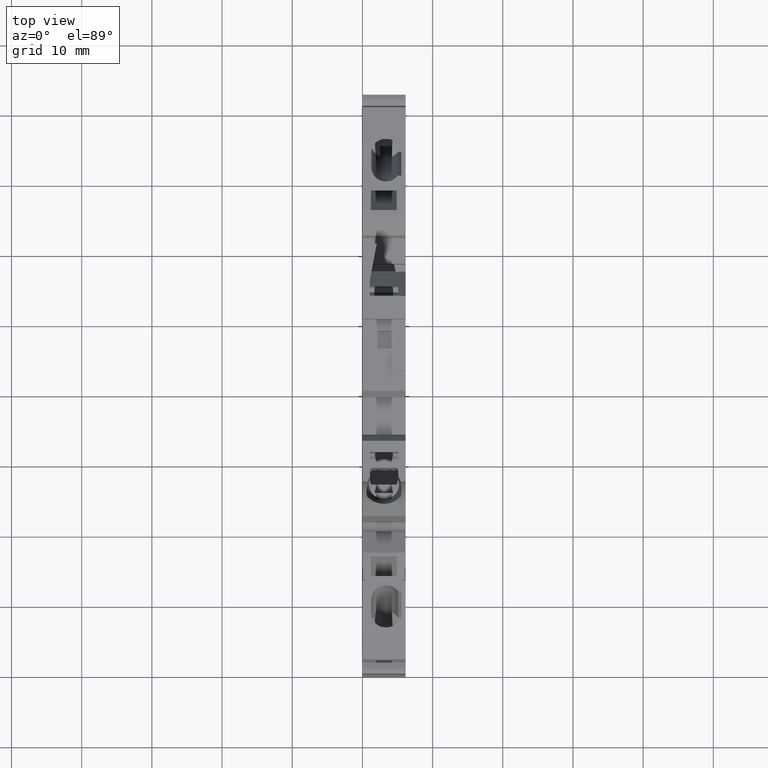
[diagram: clean part render]
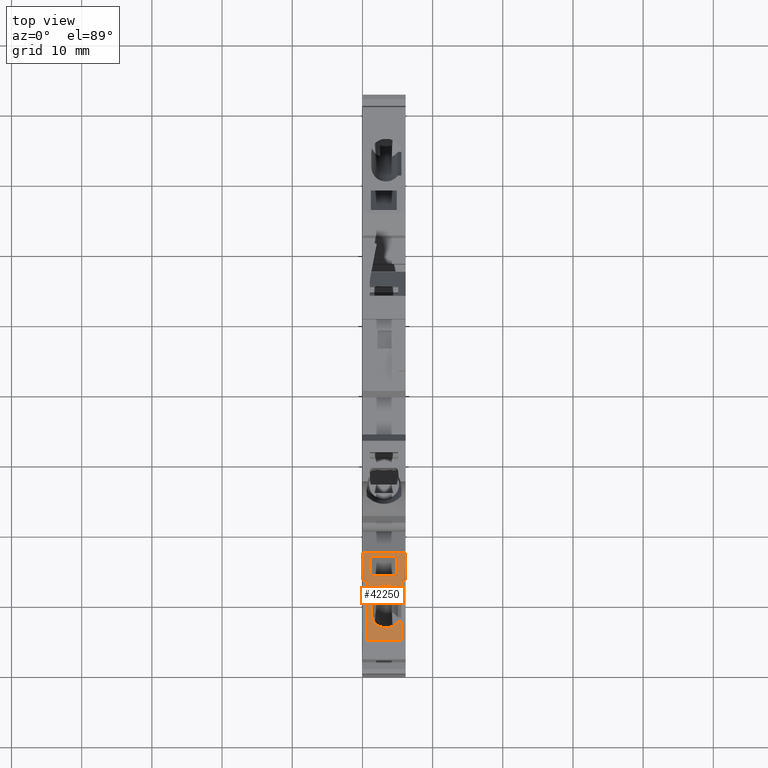
[diagram: same view with one face highlighted and labeled with its STEP entity id]
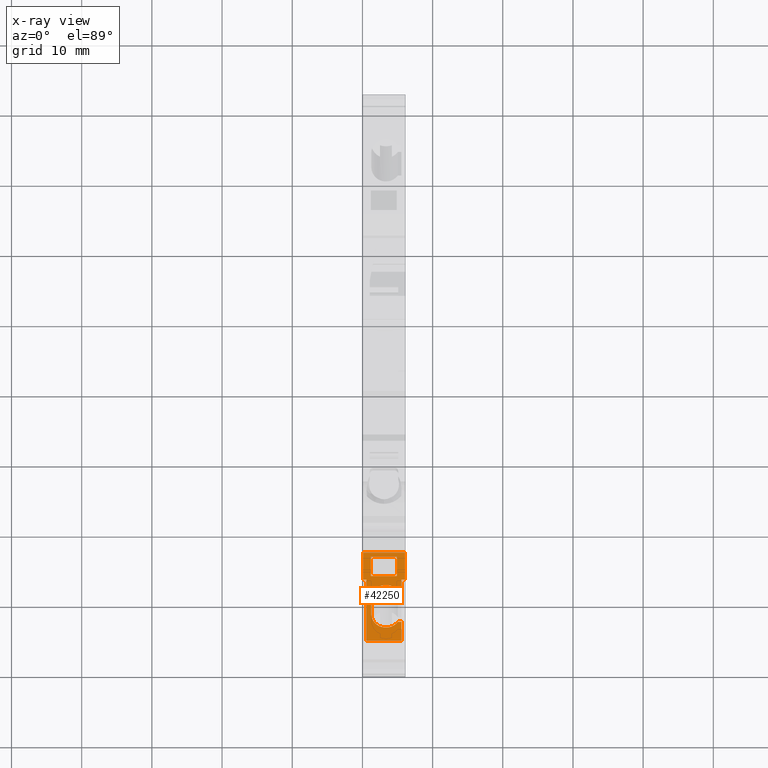
[diagram: x-ray of the same camera — body ghosted, the highlighted face saturated]
A machine part, top view. The second image highlights one B-rep face of the part: STEP entity #42250.
The next image is the same camera in x-ray: the body ghosted, the highlighted face saturated — about 0% of this face is hidden behind the body in this view.
In plain terms, the highlighted planar face has unit normal (0, -0, -1).
Its self-contained STEP definition (entity closure, byte-faithful):
#16240=CARTESIAN_POINT('',(19.9805449622441,34.1718882039716,
0.399999999961139));
#16250=DIRECTION('',(-0.992546151641338,-0.121869343405017,
-3.03229833609689E-14));
#16260=VECTOR('',#16250,1.);
#16270=LINE('',#16240,#16260);
#16280=CARTESIAN_POINT('',(18.2110292795021,33.9546189978556,
0.399999999961085));
#16290=VERTEX_POINT('',#16280);
#16300=CARTESIAN_POINT('',(14.3544926897042,33.4810958460718,
0.399999999960967));
#16310=VERTEX_POINT('',#16300);
#16320=EDGE_CURVE('',#16290,#16310,#16270,.T.);
#22670=CARTESIAN_POINT('',(19.9805449622443,34.1718882039716,
-4.40000000003886));
#22680=DIRECTION('',(-0.992546151641338,-0.121869343405017,
-3.03229833609689E-14));
#22690=VECTOR('',#22680,1.);
#22700=LINE('',#22670,#22690);
#22710=CARTESIAN_POINT('',(11.5216242129503,33.1332633340582,
-4.40000000003911));
#22720=VERTEX_POINT('',#22710);
#22730=CARTESIAN_POINT('',(9.61582816797099,32.8992610035052,
-4.40000000003917));
#22740=VERTEX_POINT('',#22730);
#22750=EDGE_CURVE('',#22720,#22740,#22700,.T.);
#24800=CARTESIAN_POINT('',(18.2110292795021,33.9546189978556,
0.499999999961084));
#24810=DIRECTION('',(3.00945698545541E-14,3.71491183819992E-15,-1.));
#24820=VECTOR('',#24810,1.);
#24830=LINE('',#24800,#24820);
#24840=CARTESIAN_POINT('',(18.2110292795023,33.9546189978556,
-5.55000000003892));
#24850=VERTEX_POINT('',#24840);
#24860=EDGE_CURVE('',#16290,#24850,#24830,.T.);
#27200=CARTESIAN_POINT('',(5.74023209630564,32.4233976416093,
0.499999999960703));
#27210=DIRECTION('',(1.3063826055672E-13,1.60205981665079E-14,1.));
#27220=VECTOR('',#27210,1.);
#27230=LINE('',#27200,#27220);
#27240=CARTESIAN_POINT('',(5.74023209630491,32.4233976416092,
-5.1000000000393));
#27250=VERTEX_POINT('',#27240);
#27260=CARTESIAN_POINT('',(5.74023209630556,32.4233976416093,
-0.100000000004831));
#27270=VERTEX_POINT('',#27260);
#27280=EDGE_CURVE('',#27250,#27270,#27230,.T.);
#39050=CARTESIAN_POINT('',(7.62315313458116,32.6545912745085,
-2.40000000003923));
#39060=VERTEX_POINT('',#39050);
#39090=CARTESIAN_POINT('',(9.61582816797092,32.8992610035052,
-2.40000000003917));
#39100=DIRECTION('',(0.121869343405017,-0.992546151641338,
-1.96159804605775E-17));
#39110=DIRECTION('',(-0.992546151641338,-0.121869343405017,
-3.03229833609689E-14));
#39120=AXIS2_PLACEMENT_3D('',#39090,#39100,#39110);
#39130=ELLIPSE('',#39120,2.00763967508669,2.);
#39140=EDGE_CURVE('',#39060,#22740,#39130,.T.);
#40380=CARTESIAN_POINT('',(11.5216242129502,33.1332633340582,
-2.40000000003911));
#40390=DIRECTION('',(0.121869343405017,-0.992546151641338,
-1.96159804605775E-17));
#40400=DIRECTION('',(-0.992546151641338,-0.121869343405017,
-3.03229833609689E-14));
#40410=AXIS2_PLACEMENT_3D('',#40380,#40390,#40400);
#40420=ELLIPSE('',#40410,2.10292444847597,2.);
#40430=CARTESIAN_POINT('',(13.6088737814776,33.3895453558243,
-2.40000000003905));
#40440=VERTEX_POINT('',#40430);
#40450=EDGE_CURVE('',#22720,#40440,#40420,.T.);
#40900=CARTESIAN_POINT('',(6.31283740610289,32.4937047331433,
-5.55000000003928));
#40910=DIRECTION('',(0.121869343405017,-0.992546151641338,
-1.96159804612533E-17));
#40920=DIRECTION('',(-3.00945698545541E-14,-3.71491183819992E-15,1.));
#40930=AXIS2_PLACEMENT_3D('',#40900,#40910,#40920);
#40940=PLANE('',#40930);
#40950=CARTESIAN_POINT('',(19.9805449622443,34.1718882039716,
-4.45000000003886));
#40960=DIRECTION('',(-0.992546151641338,-0.121869343405017,
-3.03229833609689E-14));
#40970=VECTOR('',#40960,1.);
#40980=LINE('',#40950,#40970);
#40990=CARTESIAN_POINT('',(17.6567178466226,33.8865581119661,
-4.45000000003893));
#41000=VERTEX_POINT('',#40990);
#41010=CARTESIAN_POINT('',(14.8969767476088,33.5477045129183,
-4.45000000003901));
#41020=VERTEX_POINT('',#41010);
#41030=EDGE_CURVE('',#41000,#41020,#40980,.T.);
#41040=ORIENTED_EDGE('',*,*,#41030,.F.);
#41050=CARTESIAN_POINT('',(14.8969767476087,33.5477045129183,
0.499999999960982));
#41060=DIRECTION('',(3.00945698545541E-14,3.71491183819992E-15,-1.));
#41070=VECTOR('',#41060,1.);
#41080=LINE('',#41050,#41070);
#41090=CARTESIAN_POINT('',(14.8969767476087,33.5477045129183,
-0.750000000039011));
#41100=VERTEX_POINT('',#41090);
#41110=EDGE_CURVE('',#41100,#41020,#41080,.T.);
#41120=ORIENTED_EDGE('',*,*,#41110,.T.);
#41130=CARTESIAN_POINT('',(19.9805449622442,34.1718882039716,
-0.750000000038856));
#41140=DIRECTION('',(0.992546151641338,0.121869343405017,
3.03229833609689E-14));
#41150=VECTOR('',#41140,1.);
#41160=LINE('',#41130,#41150);
#41170=CARTESIAN_POINT('',(17.6567178466225,33.886558111966,
-0.750000000038927));
#41180=VERTEX_POINT('',#41170);
#41190=EDGE_CURVE('',#41100,#41180,#41160,.T.);
#41200=ORIENTED_EDGE('',*,*,#41190,.F.);
#41210=CARTESIAN_POINT('',(17.6567178466224,33.886558111966,
0.499999999961067));
#41220=DIRECTION('',(-3.00945698545541E-14,-3.71491183819992E-15,1.));
#41230=VECTOR('',#41220,1.);
#41240=LINE('',#41210,#41230);
#41250=EDGE_CURVE('',#41000,#41180,#41240,.T.);
#41260=ORIENTED_EDGE('',*,*,#41250,.T.);
#41270=EDGE_LOOP('',(#41260,#41200,#41120,#41040));
#41280=FACE_BOUND('',#41270,.T.);
#41290=ORIENTED_EDGE('',*,*,#16320,.F.);
#41300=CARTESIAN_POINT('',(14.3544926897042,33.4810958460718,
0.499999999960966));
#41310=DIRECTION('',(-3.00945698545541E-14,-3.71491183819992E-15,1.));
#41320=VECTOR('',#41310,1.);
#41330=LINE('',#41300,#41320);
#41340=CARTESIAN_POINT('',(14.3544926897042,33.4810958460718,
-0.100000000005973));
#41350=VERTEX_POINT('',#41340);
#41360=EDGE_CURVE('',#41350,#16310,#41330,.T.);
#41370=ORIENTED_EDGE('',*,*,#41360,.T.);
#41380=CARTESIAN_POINT('',(19.9805449622441,34.1718882039716,
-0.100000000006719));
#41390=DIRECTION('',(0.992546151641338,0.121869343405017,
-1.31616922552198E-13));
#41400=VECTOR('',#41390,1.);
#41410=LINE('',#41380,#41400);
#41420=CARTESIAN_POINT('',(12.7739739540666,33.2870325471179,
-0.100000000005763));
#41430=VERTEX_POINT('',#41420);
#41440=EDGE_CURVE('',#41430,#41350,#41410,.T.);
#41450=ORIENTED_EDGE('',*,*,#41440,.T.);
#41460=CARTESIAN_POINT('',(12.7739739540665,33.2870325471179,
0.499999999960918));
#41470=DIRECTION('',(3.00945698545541E-14,3.71491183819992E-15,-1.));
#41480=VECTOR('',#41470,1.);
#41490=LINE('',#41460,#41480);
#41500=CARTESIAN_POINT('',(12.7739739540666,33.2870325471179,
-0.600000000039073));
#41510=VERTEX_POINT('',#41500);
#41520=EDGE_CURVE('',#41430,#41510,#41490,.T.);
#41530=ORIENTED_EDGE('',*,*,#41520,.F.);
#41540=CARTESIAN_POINT('',(11.5216242129502,33.1332633340582,
-2.20000000003911));
#41550=DIRECTION('',(0.121869343405017,-0.992546151641338,
-1.96159804605775E-17));
#41560=DIRECTION('',(-0.992546151641338,-0.121869343405017,
-3.03229833609689E-14));
#41570=AXIS2_PLACEMENT_3D('',#41540,#41550,#41560);
#41580=ELLIPSE('',#41570,2.10292444847597,2.);
#41590=CARTESIAN_POINT('',(13.6088737814775,33.3895453558243,
-2.20000000003905));
#41600=VERTEX_POINT('',#41590);
#41610=EDGE_CURVE('',#41600,#41510,#41580,.T.);
#41620=ORIENTED_EDGE('',*,*,#41610,.T.);
#41630=CARTESIAN_POINT('',(13.6088737814775,33.3895453558243,
0.499999999960943));
#41640=DIRECTION('',(-3.00945698545541E-14,-3.71491183819992E-15,1.));
#41650=VECTOR('',#41640,1.);
#41660=LINE('',#41630,#41650);
#41670=EDGE_CURVE('',#40440,#41600,#41660,.T.);
#41680=ORIENTED_EDGE('',*,*,#41670,.T.);
#41690=ORIENTED_EDGE('',*,*,#40450,.T.);
#41700=ORIENTED_EDGE('',*,*,#22750,.F.);
#41710=ORIENTED_EDGE('',*,*,#39140,.T.);
#41720=CARTESIAN_POINT('',(7.62315313458108,32.6545912745085,
0.49999999996076));
#41730=DIRECTION('',(3.00945698545541E-14,3.71491183819992E-15,-1.));
#41740=VECTOR('',#41730,1.);
#41750=LINE('',#41720,#41740);
#41760=CARTESIAN_POINT('',(7.62315313458116,32.6545912745085,
-2.20000000003923));
#41770=VERTEX_POINT('',#41760);
#41780=EDGE_CURVE('',#41770,#39060,#41750,.T.);
#41790=ORIENTED_EDGE('',*,*,#41780,.T.);
#41800=CARTESIAN_POINT('',(9.61582816797092,32.8992610035052,
-2.20000000003917));
#41810=DIRECTION('',(0.121869343405017,-0.992546151641338,
-1.96159804605775E-17));
#41820=DIRECTION('',(-0.992546151641338,-0.121869343405017,
-3.03229833609689E-14));
#41830=AXIS2_PLACEMENT_3D('',#41800,#41810,#41820);
#41840=ELLIPSE('',#41830,2.00763967508669,2.);
#41850=CARTESIAN_POINT('',(8.42022314793701,32.7524591661072,
-0.600000000039211));
#41860=VERTEX_POINT('',#41850);
#41870=EDGE_CURVE('',#41860,#41770,#41840,.T.);
#41880=ORIENTED_EDGE('',*,*,#41870,.T.);
#41890=CARTESIAN_POINT('',(8.42022314793698,32.7524591661072,
0.499999999960785));
#41900=DIRECTION('',(3.00945698545541E-14,3.71491183819992E-15,-1.));
#41910=VECTOR('',#41900,1.);
#41920=LINE('',#41890,#41910);
#41930=CARTESIAN_POINT('',(8.420223147937,32.7524591661072,
-0.100000000005186));
#41940=VERTEX_POINT('',#41930);
#41950=EDGE_CURVE('',#41940,#41860,#41920,.T.);
#41960=ORIENTED_EDGE('',*,*,#41950,.T.);
#41970=EDGE_CURVE('',#27270,#41940,#41410,.T.);
#41980=ORIENTED_EDGE('',*,*,#41970,.T.);
#41990=ORIENTED_EDGE('',*,*,#27280,.T.);
#42000=CARTESIAN_POINT('',(19.9805449622443,34.1718882039716,
-5.10000000003886));
#42010=DIRECTION('',(0.992546151641338,0.121869343405017,
3.03229833609689E-14));
#42020=VECTOR('',#42010,1.);
#42030=LINE('',#42000,#42020);
#42040=CARTESIAN_POINT('',(14.3544926897044,33.4810958460718,
-5.10000000003903));
#42050=VERTEX_POINT('',#42040);
#42060=EDGE_CURVE('',#27250,#42050,#42030,.T.);
#42070=ORIENTED_EDGE('',*,*,#42060,.F.);
#42080=CARTESIAN_POINT('',(14.3544926897042,33.4810958460718,
0.499999999960966));
#42090=DIRECTION('',(3.00945698545541E-14,3.71491183819992E-15,-1.));
#42100=VECTOR('',#42090,1.);
#42110=LINE('',#42080,#42100);
#42120=CARTESIAN_POINT('',(14.3544926897044,33.4810958460718,
-5.55000000003903));
#42130=VERTEX_POINT('',#42120);
#42140=EDGE_CURVE('',#42050,#42130,#42110,.T.);
#42150=ORIENTED_EDGE('',*,*,#42140,.F.);
#42160=CARTESIAN_POINT('',(19.9805449622443,34.1718882039716,
-5.55000000003886));
#42170=DIRECTION('',(-0.992546151641338,-0.121869343405017,
-3.03229833609689E-14));
#42180=VECTOR('',#42170,1.);
#42190=LINE('',#42160,#42180);
#42200=EDGE_CURVE('',#24850,#42130,#42190,.T.);
#42210=ORIENTED_EDGE('',*,*,#42200,.T.);
#42220=ORIENTED_EDGE('',*,*,#24860,.T.);
#42230=EDGE_LOOP('',(#42220,#42210,#42150,#42070,#41990,#41980,#41960,
#41880,#41790,#41710,#41700,#41690,#41680,#41620,#41530,#41450,#41370,
#41290));
#42240=FACE_OUTER_BOUND('',#42230,.T.);
#42250=ADVANCED_FACE('',(#41280,#42240),#40940,.F.);